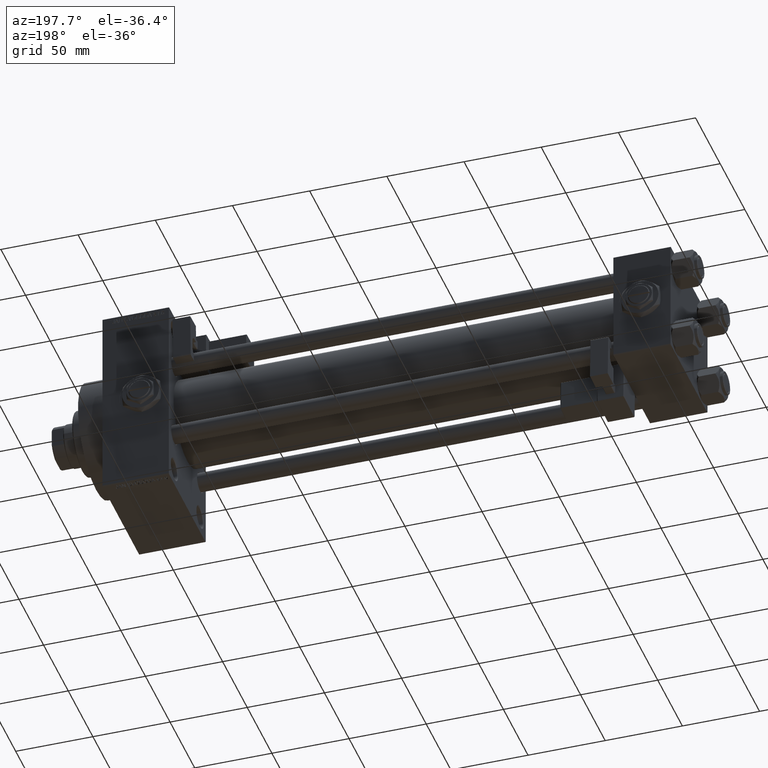
[diagram: clean part render]
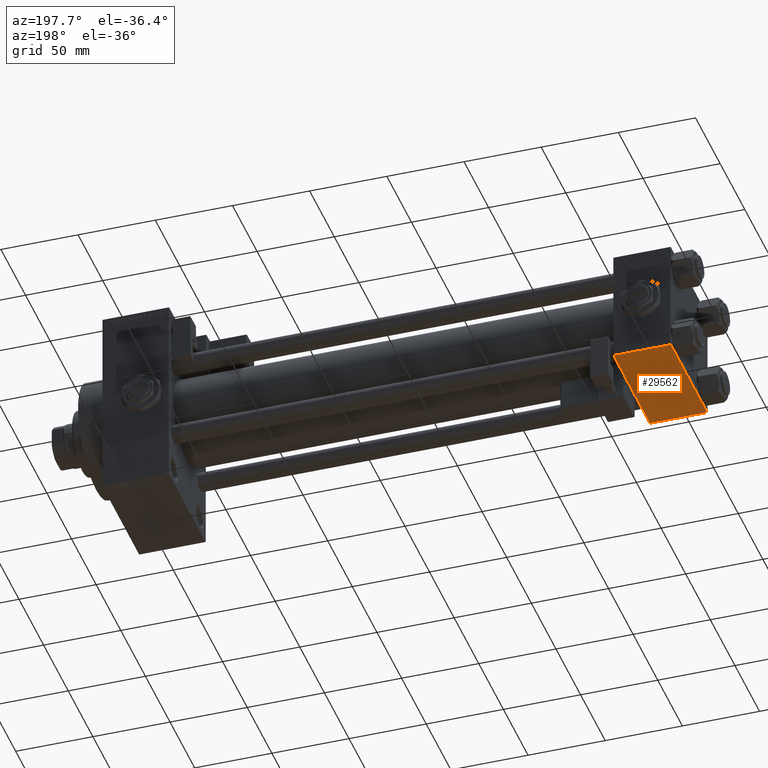
[diagram: same view with one face highlighted and labeled with its STEP entity id]
A machine part, auxiliary view. The second image highlights one B-rep face of the part: STEP entity #29562.
In plain terms, the highlighted planar face has unit normal (0, 0, -1).
Its self-contained STEP definition (entity closure, byte-faithful):
#223 = LINE ( 'NONE', #48372, #35747 ) ;
#246 = EDGE_LOOP ( 'NONE', ( #30302, #46247, #7048, #44527 ) ) ;
#1603 = DIRECTION ( 'NONE',  ( -1.000000000000000000, 0.000000000000000000, 0.000000000000000000 ) ) ;
#2118 = VERTEX_POINT ( 'NONE', #42408 ) ;
#4366 = DIRECTION ( 'NONE',  ( 1.000000000000000000, 0.000000000000000000, 0.000000000000000000 ) ) ;
#6999 = EDGE_CURVE ( 'NONE', #2118, #45377, #12192, .T. ) ;
#7048 = ORIENTED_EDGE ( 'NONE', *, *, #21345, .T. ) ;
#8838 = VECTOR ( 'NONE', #1603, 1000.000000000000000 ) ;
#9429 = LINE ( 'NONE', #45070, #8838 ) ;
#12192 = LINE ( 'NONE', #36125, #29077 ) ;
#12399 = FACE_OUTER_BOUND ( 'NONE', #246, .T. ) ;
#16878 = LINE ( 'NONE', #41589, #39815 ) ;
#17063 = PLANE ( 'NONE',  #39288 ) ;
#17138 = DIRECTION ( 'NONE',  ( 0.000000000000000000, -1.000000000000000000, -9.251858538542972814E-17 ) ) ;
#18151 = VERTEX_POINT ( 'NONE', #28548 ) ;
#21345 = EDGE_CURVE ( 'NONE', #45377, #34004, #16878, .T. ) ;
#22436 = EDGE_CURVE ( 'NONE', #2118, #18151, #223, .T. ) ;
#25651 = DIRECTION ( 'NONE',  ( 0.000000000000000000, 1.000000000000000000, 9.251858538542972814E-17 ) ) ;
#27378 = CARTESIAN_POINT ( 'NONE',  ( 37.00000000000000000, 36.99999999999997868, -37.50000000000000000 ) ) ;
#27524 = CARTESIAN_POINT ( 'NONE',  ( 37.00000000000000000, -37.00000000000002132, -37.50000000000000711 ) ) ;
#28548 = CARTESIAN_POINT ( 'NONE',  ( 0.000000000000000000, -37.00000000000002132, -37.50000000000000711 ) ) ;
#29077 = VECTOR ( 'NONE', #4366, 1000.000000000000000 ) ;
#29562 = ADVANCED_FACE ( 'NONE', ( #12399 ), #17063, .T. ) ;
#30302 = ORIENTED_EDGE ( 'NONE', *, *, #22436, .F. ) ;
#34004 = VERTEX_POINT ( 'NONE', #27524 ) ;
#35747 = VECTOR ( 'NONE', #47337, 1000.000000000000000 ) ;
#36125 = CARTESIAN_POINT ( 'NONE',  ( 37.00000000000000000, 36.99999999999997868, -37.50000000000000000 ) ) ;
#39288 = AXIS2_PLACEMENT_3D ( 'NONE', #44122, #45668, #25651 ) ;
#39311 = EDGE_CURVE ( 'NONE', #34004, #18151, #9429, .T. ) ;
#39815 = VECTOR ( 'NONE', #17138, 1000.000000000000000 ) ;
#41589 = CARTESIAN_POINT ( 'NONE',  ( 37.00000000000000000, 37.49999999999999289, -37.50000000000000000 ) ) ;
#42408 = CARTESIAN_POINT ( 'NONE',  ( 0.000000000000000000, 36.99999999999997868, -37.50000000000000000 ) ) ;
#44122 = CARTESIAN_POINT ( 'NONE',  ( 37.00000000000000000, 37.49999999999999289, -37.50000000000000000 ) ) ;
#44527 = ORIENTED_EDGE ( 'NONE', *, *, #39311, .T. ) ;
#45070 = CARTESIAN_POINT ( 'NONE',  ( 0.000000000000000000, -37.00000000000002132, -37.50000000000000711 ) ) ;
#45377 = VERTEX_POINT ( 'NONE', #27378 ) ;
#45668 = DIRECTION ( 'NONE',  ( 0.000000000000000000, 9.251858538542972814E-17, -1.000000000000000000 ) ) ;
#46247 = ORIENTED_EDGE ( 'NONE', *, *, #6999, .T. ) ;
#47337 = DIRECTION ( 'NONE',  ( 0.000000000000000000, -1.000000000000000000, -9.251858538542972814E-17 ) ) ;
#48372 = CARTESIAN_POINT ( 'NONE',  ( 0.000000000000000000, 37.49999999999999289, -37.50000000000000000 ) ) ;